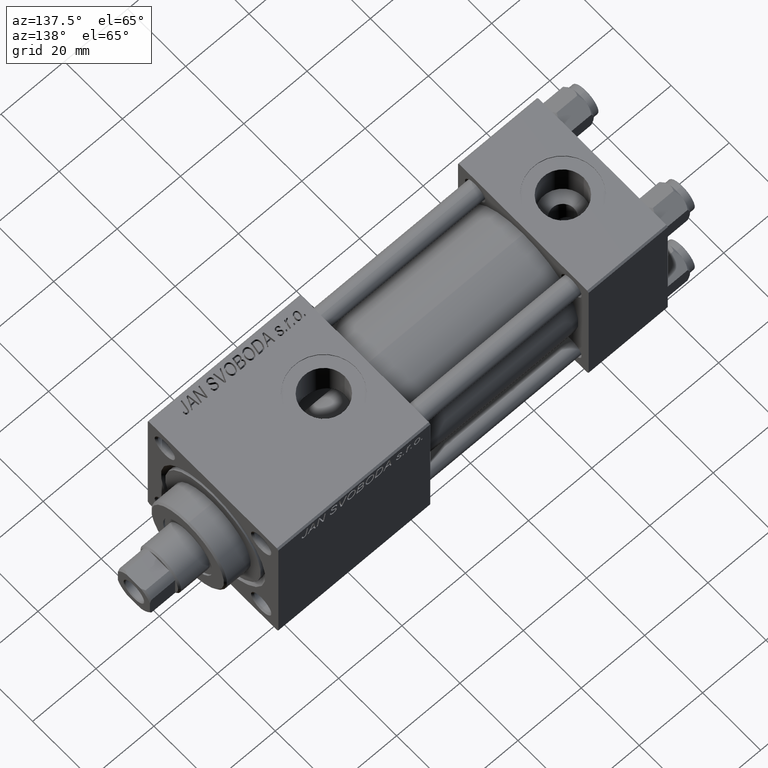
[diagram: clean part render]
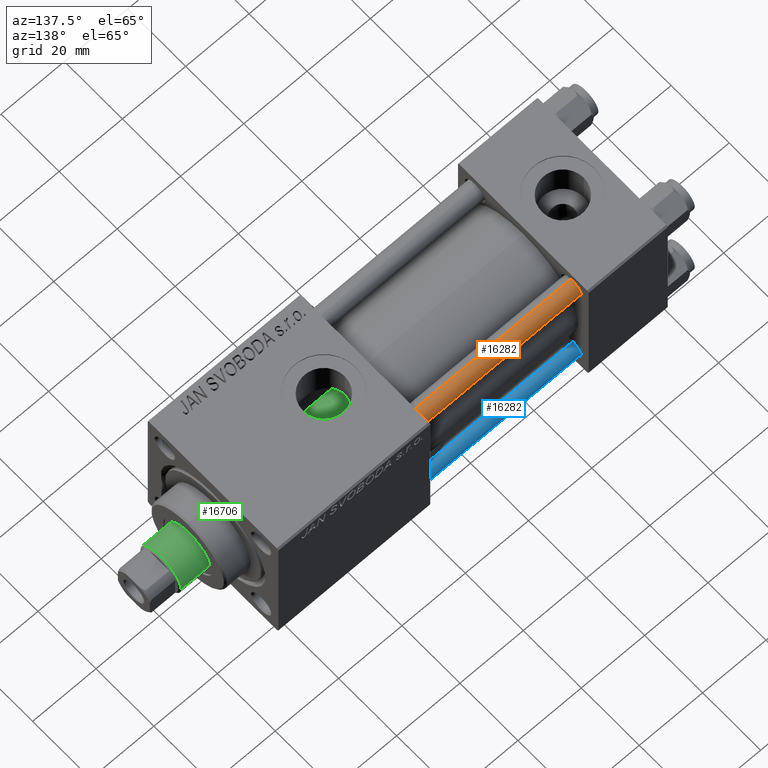
[diagram: same view with three faces highlighted in distinct colors, each labeled with its STEP entity id]
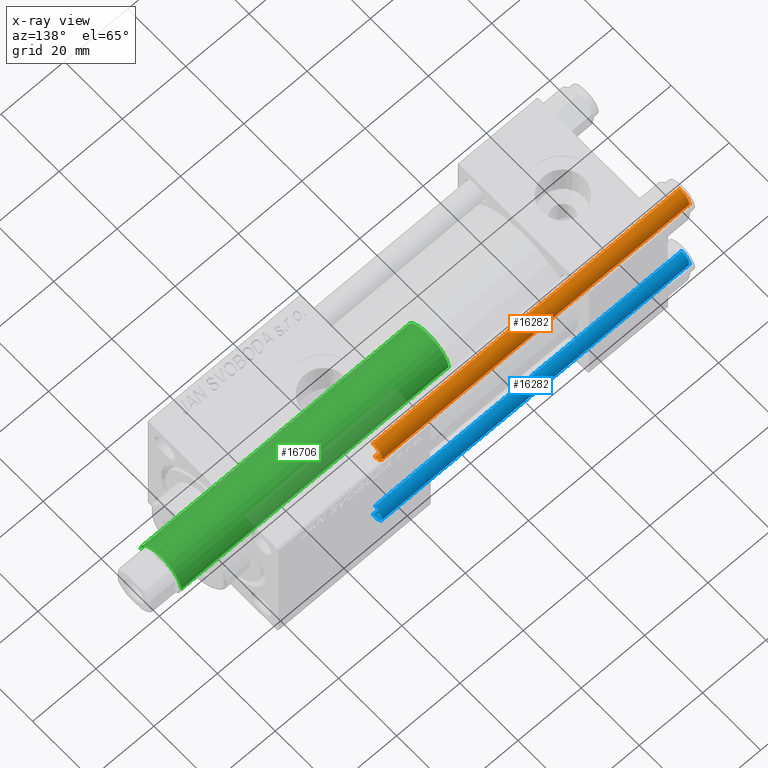
[diagram: x-ray of the same camera — body ghosted, the three highlighted faces saturated]
A machine part, auxiliary view with three faces highlighted in distinct colors.
The next image is the same camera in x-ray (body ghosted, the three faces saturated) — at least one of them is partly hidden behind the body in this view.
Their STEP definitions:

[orange] entity #16282 — the highlighted cylindrical surface (edge-blend (fillet) strip) has radius 3 mm, axis along (-1, 0, 0).
#374 = VERTEX_POINT ( 'NONE', #43954 ) ;
#529 = FACE_OUTER_BOUND ( 'NONE', #46997, .T. ) ;
#592 = CARTESIAN_POINT ( 'NONE',  ( 0.000000000000000000, 0.000000000000000000, 97.50000000000001421 ) ) ;
#6724 = VECTOR ( 'NONE', #7327, 1000.000000000000000 ) ;
#7235 = ORIENTED_EDGE ( 'NONE', *, *, #44575, .T. ) ;
#7327 = DIRECTION ( 'NONE',  ( -0.000000000000000000, -0.000000000000000000, -1.000000000000000000 ) ) ;
#8426 = DIRECTION ( 'NONE',  ( -0.000000000000000000, -0.000000000000000000, -1.000000000000000000 ) ) ;
#9865 = AXIS2_PLACEMENT_3D ( 'NONE', #15686, #49919, #15434 ) ;
#10686 = CIRCLE ( 'NONE', #9865, 3.000000000000000444 ) ;
#11772 = DIRECTION ( 'NONE',  ( 1.000000000000000000, 0.000000000000000000, 0.000000000000000000 ) ) ;
#12625 = ORIENTED_EDGE ( 'NONE', *, *, #25004, .T. ) ;
#15277 = CARTESIAN_POINT ( 'NONE',  ( 3.000000000000000444, 3.673940397442060361E-16, 97.50000000000001421 ) ) ;
#15434 = DIRECTION ( 'NONE',  ( 1.000000000000000000, 0.000000000000000000, 0.000000000000000000 ) ) ;
#15526 = DIRECTION ( 'NONE',  ( -1.000000000000000000, 0.000000000000000000, 0.000000000000000000 ) ) ;
#15686 = CARTESIAN_POINT ( 'NONE',  ( 0.000000000000000000, 0.000000000000000000, 0.5000000000000281997 ) ) ;
#16139 = VERTEX_POINT ( 'NONE', #15277 ) ;
#16279 = DIRECTION ( 'NONE',  ( -0.000000000000000000, -0.000000000000000000, -1.000000000000000000 ) ) ;
#16282 = ADVANCED_FACE ( 'NONE', ( #529 ), #46703, .T. ) ;
#16709 = ORIENTED_EDGE ( 'NONE', *, *, #17864, .T. ) ;
#17864 = EDGE_CURVE ( 'NONE', #20567, #34651, #10686, .T. ) ;
#19649 = DIRECTION ( 'NONE',  ( 0.000000000000000000, 0.000000000000000000, -1.000000000000000000 ) ) ;
#20567 = VERTEX_POINT ( 'NONE', #28229 ) ;
#23026 = ORIENTED_EDGE ( 'NONE', *, *, #39546, .F. ) ;
#24408 = CARTESIAN_POINT ( 'NONE',  ( 0.000000000000000000, 0.000000000000000000, 98.00000000000000000 ) ) ;
#24930 = LINE ( 'NONE', #47998, #31818 ) ;
#25004 = EDGE_CURVE ( 'NONE', #374, #16139, #27390, .T. ) ;
#27390 = CIRCLE ( 'NONE', #45193, 3.000000000000000444 ) ;
#28229 = CARTESIAN_POINT ( 'NONE',  ( 3.000000000000000444, 3.673940397442060361E-16, 0.5000000000000281997 ) ) ;
#30509 = CARTESIAN_POINT ( 'NONE',  ( -3.000000000000000444, 0.000000000000000000, 0.5000000000000281997 ) ) ;
#31818 = VECTOR ( 'NONE', #8426, 1000.000000000000000 ) ;
#34651 = VERTEX_POINT ( 'NONE', #30509 ) ;
#34741 = CARTESIAN_POINT ( 'NONE',  ( 3.000000000000000444, 3.673940397442060361E-16, 98.00000000000000000 ) ) ;
#39014 = AXIS2_PLACEMENT_3D ( 'NONE', #24408, #16279, #15526 ) ;
#39546 = EDGE_CURVE ( 'NONE', #374, #34651, #24930, .T. ) ;
#43954 = CARTESIAN_POINT ( 'NONE',  ( -3.000000000000000444, 0.000000000000000000, 97.50000000000001421 ) ) ;
#44575 = EDGE_CURVE ( 'NONE', #16139, #20567, #46393, .T. ) ;
#45193 = AXIS2_PLACEMENT_3D ( 'NONE', #592, #19649, #11772 ) ;
#46393 = LINE ( 'NONE', #34741, #6724 ) ;
#46703 = CYLINDRICAL_SURFACE ( 'NONE', #39014, 3.000000000000000444 ) ;
#46997 = EDGE_LOOP ( 'NONE', ( #12625, #7235, #16709, #23026 ) ) ;
#47998 = CARTESIAN_POINT ( 'NONE',  ( -3.000000000000000444, 0.000000000000000000, 98.00000000000000000 ) ) ;
#49919 = DIRECTION ( 'NONE',  ( -0.000000000000000000, -0.000000000000000000, 1.000000000000000000 ) ) ;

[blue] entity #16282 — the highlighted cylindrical surface (edge-blend (fillet) strip) has radius 3 mm, axis along (1, -0, 0).
#374 = VERTEX_POINT ( 'NONE', #43954 ) ;
#529 = FACE_OUTER_BOUND ( 'NONE', #46997, .T. ) ;
#592 = CARTESIAN_POINT ( 'NONE',  ( 0.000000000000000000, 0.000000000000000000, 97.50000000000001421 ) ) ;
#6724 = VECTOR ( 'NONE', #7327, 1000.000000000000000 ) ;
#7235 = ORIENTED_EDGE ( 'NONE', *, *, #44575, .T. ) ;
#7327 = DIRECTION ( 'NONE',  ( -0.000000000000000000, -0.000000000000000000, -1.000000000000000000 ) ) ;
#8426 = DIRECTION ( 'NONE',  ( -0.000000000000000000, -0.000000000000000000, -1.000000000000000000 ) ) ;
#9865 = AXIS2_PLACEMENT_3D ( 'NONE', #15686, #49919, #15434 ) ;
#10686 = CIRCLE ( 'NONE', #9865, 3.000000000000000444 ) ;
#11772 = DIRECTION ( 'NONE',  ( 1.000000000000000000, 0.000000000000000000, 0.000000000000000000 ) ) ;
#12625 = ORIENTED_EDGE ( 'NONE', *, *, #25004, .T. ) ;
#15277 = CARTESIAN_POINT ( 'NONE',  ( 3.000000000000000444, 3.673940397442060361E-16, 97.50000000000001421 ) ) ;
#15434 = DIRECTION ( 'NONE',  ( 1.000000000000000000, 0.000000000000000000, 0.000000000000000000 ) ) ;
#15526 = DIRECTION ( 'NONE',  ( -1.000000000000000000, 0.000000000000000000, 0.000000000000000000 ) ) ;
#15686 = CARTESIAN_POINT ( 'NONE',  ( 0.000000000000000000, 0.000000000000000000, 0.5000000000000281997 ) ) ;
#16139 = VERTEX_POINT ( 'NONE', #15277 ) ;
#16279 = DIRECTION ( 'NONE',  ( -0.000000000000000000, -0.000000000000000000, -1.000000000000000000 ) ) ;
#16282 = ADVANCED_FACE ( 'NONE', ( #529 ), #46703, .T. ) ;
#16709 = ORIENTED_EDGE ( 'NONE', *, *, #17864, .T. ) ;
#17864 = EDGE_CURVE ( 'NONE', #20567, #34651, #10686, .T. ) ;
#19649 = DIRECTION ( 'NONE',  ( 0.000000000000000000, 0.000000000000000000, -1.000000000000000000 ) ) ;
#20567 = VERTEX_POINT ( 'NONE', #28229 ) ;
#23026 = ORIENTED_EDGE ( 'NONE', *, *, #39546, .F. ) ;
#24408 = CARTESIAN_POINT ( 'NONE',  ( 0.000000000000000000, 0.000000000000000000, 98.00000000000000000 ) ) ;
#24930 = LINE ( 'NONE', #47998, #31818 ) ;
#25004 = EDGE_CURVE ( 'NONE', #374, #16139, #27390, .T. ) ;
#27390 = CIRCLE ( 'NONE', #45193, 3.000000000000000444 ) ;
#28229 = CARTESIAN_POINT ( 'NONE',  ( 3.000000000000000444, 3.673940397442060361E-16, 0.5000000000000281997 ) ) ;
#30509 = CARTESIAN_POINT ( 'NONE',  ( -3.000000000000000444, 0.000000000000000000, 0.5000000000000281997 ) ) ;
#31818 = VECTOR ( 'NONE', #8426, 1000.000000000000000 ) ;
#34651 = VERTEX_POINT ( 'NONE', #30509 ) ;
#34741 = CARTESIAN_POINT ( 'NONE',  ( 3.000000000000000444, 3.673940397442060361E-16, 98.00000000000000000 ) ) ;
#39014 = AXIS2_PLACEMENT_3D ( 'NONE', #24408, #16279, #15526 ) ;
#39546 = EDGE_CURVE ( 'NONE', #374, #34651, #24930, .T. ) ;
#43954 = CARTESIAN_POINT ( 'NONE',  ( -3.000000000000000444, 0.000000000000000000, 97.50000000000001421 ) ) ;
#44575 = EDGE_CURVE ( 'NONE', #16139, #20567, #46393, .T. ) ;
#45193 = AXIS2_PLACEMENT_3D ( 'NONE', #592, #19649, #11772 ) ;
#46393 = LINE ( 'NONE', #34741, #6724 ) ;
#46703 = CYLINDRICAL_SURFACE ( 'NONE', #39014, 3.000000000000000444 ) ;
#46997 = EDGE_LOOP ( 'NONE', ( #12625, #7235, #16709, #23026 ) ) ;
#47998 = CARTESIAN_POINT ( 'NONE',  ( -3.000000000000000444, 0.000000000000000000, 98.00000000000000000 ) ) ;
#49919 = DIRECTION ( 'NONE',  ( -0.000000000000000000, -0.000000000000000000, 1.000000000000000000 ) ) ;

[green] entity #16706 — the highlighted cylindrical surface (edge-blend (fillet) strip) has radius 7 mm, axis along (-1, 0, 0).
#1118 = CARTESIAN_POINT ( 'NONE',  ( -7.000000000000000000, 0.000000000000000000, 115.0000000000000000 ) ) ;
#1802 = AXIS2_PLACEMENT_3D ( 'NONE', #24437, #39895, #1818 ) ;
#1818 = DIRECTION ( 'NONE',  ( 1.000000000000000000, 0.000000000000000000, 0.000000000000000000 ) ) ;
#2090 = CARTESIAN_POINT ( 'NONE',  ( 7.000000000000000000, 8.572527594031473190E-16, 30.00000000000000000 ) ) ;
#2673 = ORIENTED_EDGE ( 'NONE', *, *, #39575, .T. ) ;
#7740 = VERTEX_POINT ( 'NONE', #39846 ) ;
#9734 = VECTOR ( 'NONE', #16605, 1000.000000000000000 ) ;
#11949 = ORIENTED_EDGE ( 'NONE', *, *, #35292, .T. ) ;
#13793 = DIRECTION ( 'NONE',  ( 1.000000000000000000, 0.000000000000000000, 0.000000000000000000 ) ) ;
#14244 = FACE_OUTER_BOUND ( 'NONE', #20577, .T. ) ;
#16605 = DIRECTION ( 'NONE',  ( -0.000000000000000000, -0.000000000000000000, -1.000000000000000000 ) ) ;
#16706 = ADVANCED_FACE ( 'NONE', ( #14244 ), #37335, .T. ) ;
#17356 = CARTESIAN_POINT ( 'NONE',  ( 7.000000000000000000, 8.572527594031473190E-16, 115.0000000000000000 ) ) ;
#17357 = CARTESIAN_POINT ( 'NONE',  ( 0.000000000000000000, 0.000000000000000000, 30.00000000000000000 ) ) ;
#18062 = DIRECTION ( 'NONE',  ( -1.000000000000000000, 0.000000000000000000, 0.000000000000000000 ) ) ;
#18947 = AXIS2_PLACEMENT_3D ( 'NONE', #17357, #21661, #13793 ) ;
#20577 = EDGE_LOOP ( 'NONE', ( #25692, #2673, #11949, #21472 ) ) ;
#21472 = ORIENTED_EDGE ( 'NONE', *, *, #46968, .T. ) ;
#21661 = DIRECTION ( 'NONE',  ( 0.000000000000000000, 0.000000000000000000, 1.000000000000000000 ) ) ;
#22073 = CIRCLE ( 'NONE', #1802, 7.000000000000000000 ) ;
#24134 = VERTEX_POINT ( 'NONE', #30219 ) ;
#24437 = CARTESIAN_POINT ( 'NONE',  ( 0.000000000000000000, 0.000000000000000000, 114.4999999999999858 ) ) ;
#25057 = VERTEX_POINT ( 'NONE', #2090 ) ;
#25692 = ORIENTED_EDGE ( 'NONE', *, *, #34561, .F. ) ;
#27176 = VERTEX_POINT ( 'NONE', #27213 ) ;
#27213 = CARTESIAN_POINT ( 'NONE',  ( 7.000000000000000000, 8.572527594031473190E-16, 114.4999999999999858 ) ) ;
#30219 = CARTESIAN_POINT ( 'NONE',  ( -7.000000000000000000, 0.000000000000000000, 114.4999999999999858 ) ) ;
#31640 = VECTOR ( 'NONE', #37630, 1000.000000000000000 ) ;
#33587 = LINE ( 'NONE', #17356, #31640 ) ;
#33775 = CARTESIAN_POINT ( 'NONE',  ( 0.000000000000000000, 0.000000000000000000, 115.0000000000000000 ) ) ;
#34561 = EDGE_CURVE ( 'NONE', #27176, #25057, #33587, .T. ) ;
#35292 = EDGE_CURVE ( 'NONE', #24134, #7740, #35895, .T. ) ;
#35766 = AXIS2_PLACEMENT_3D ( 'NONE', #33775, #41625, #18062 ) ;
#35895 = LINE ( 'NONE', #1118, #9734 ) ;
#37335 = CYLINDRICAL_SURFACE ( 'NONE', #35766, 7.000000000000000000 ) ;
#37630 = DIRECTION ( 'NONE',  ( -0.000000000000000000, -0.000000000000000000, -1.000000000000000000 ) ) ;
#39575 = EDGE_CURVE ( 'NONE', #27176, #24134, #22073, .T. ) ;
#39846 = CARTESIAN_POINT ( 'NONE',  ( -7.000000000000000000, 0.000000000000000000, 30.00000000000000000 ) ) ;
#39895 = DIRECTION ( 'NONE',  ( 0.000000000000000000, 0.000000000000000000, -1.000000000000000000 ) ) ;
#41625 = DIRECTION ( 'NONE',  ( -0.000000000000000000, -0.000000000000000000, -1.000000000000000000 ) ) ;
#45677 = CIRCLE ( 'NONE', #18947, 7.000000000000000000 ) ;
#46968 = EDGE_CURVE ( 'NONE', #7740, #25057, #45677, .T. ) ;